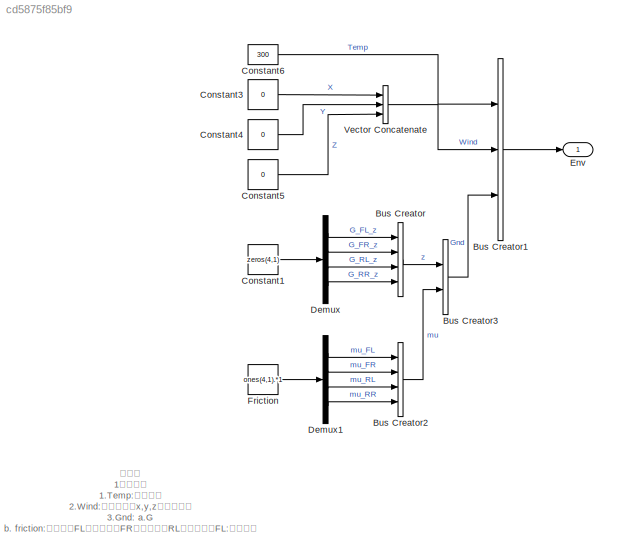
MODEL slx_cd5875f85bf9
KIND model
CONFIG AbsTol = auto
CONFIG EnableMultiTasking = off
CONFIG FixedStep = auto
CONFIG MaxStep = auto
CONFIG MinStep = auto
CONFIG RelTol = 1e-3
CONFIG SampleTimeConstraint = Unconstrained
CONFIG Solver = VariableStepAuto
CONFIG SolverName = VariableStepAuto
CONFIG StartTime = 0.0
CONFIG StopTime = 10.0
BLOCK [BusCreator] Bus Creator
  DisplayOption = bar
  InheritFromInputs = on
  Inputs = 4
  Ports = [4, 1]
BLOCK [BusCreator] Bus Creator1
  DisplayOption = bar
  InheritFromInputs = on
  Inputs = 3
  Ports = [3, 1]
BLOCK [BusCreator] Bus Creator2
  DisplayOption = bar
  InheritFromInputs = on
  Inputs = 4
  Ports = [4, 1]
BLOCK [BusCreator] Bus Creator3
  DisplayOption = bar
  InheritFromInputs = on
  Inputs = 2
  Ports = [2, 1]
BLOCK [Constant] Constant1
  Value = zeros(4,1)
BLOCK [Constant] Constant3
  Value = 0
BLOCK [Constant] Constant4
  Value = 0
BLOCK [Constant] Constant5
  Value = 0
BLOCK [Constant] Constant6
  Value = 300
BLOCK [Demux] Demux
  Ports = [1, 4]
BLOCK [Demux] Demux1
  Ports = [1, 4]
BLOCK [Outport] Env
  VectorParamsAs1DForOutWhenUnconnected = off
BLOCK [Constant] Friction
  Value = ones(4,1).*1
BLOCK [Concatenate] Vector Concatenate
  NumInputs = 3
  Ports = [3, 1]
ANNOTATION (root): 注释： 1）输入： 1.Temp:环境温度 2.Wind:模拟风速（x,y,z三个坐标） 3.Gnd: a.G b. friction:摩擦力（FL：前左轮；FR：前右轮；RL：后左轮；FL:后右轮） 2）输出： 环境条件 Env ： Temp：温度 Wind：风向 Gnd：地面参数
LINE Bus Creator1:1 -> Env:1
LINE Bus Creator2:1 -> Bus Creator3:2
LINE Bus Creator3:1 -> Bus Creator1:3
LINE Bus Creator:1 -> Bus Creator3:1
LINE Constant1:1 -> Demux:1
LINE Constant3:1 -> Vector Concatenate:1
LINE Constant4:1 -> Vector Concatenate:2
LINE Constant5:1 -> Vector Concatenate:3
LINE Constant6:1 -> Bus Creator1:1
LINE Demux1:1 -> Bus Creator2:1
LINE Demux1:2 -> Bus Creator2:2
LINE Demux1:3 -> Bus Creator2:3
LINE Demux1:4 -> Bus Creator2:4
LINE Demux:1 -> Bus Creator:1
LINE Demux:2 -> Bus Creator:2
LINE Demux:3 -> Bus Creator:3
LINE Demux:4 -> Bus Creator:4
LINE Friction:1 -> Demux1:1
LINE Vector Concatenate:1 -> Bus Creator1:2
